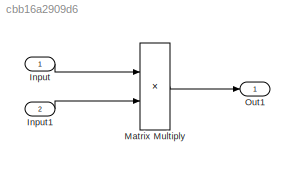
MODEL slx_cbb16a2909d6
KIND model
CONFIG AbsTol = auto
CONFIG EnableMultiTasking = off
CONFIG FixedStep = auto
CONFIG MaxStep = auto
CONFIG MinStep = auto
CONFIG RelTol = 1e-3
CONFIG SampleTimeConstraint = Unconstrained
CONFIG SolverName = FixedStepAuto
CONFIG StartTime = 0.0
CONFIG StopTime = 10.0
BLOCK [Inport] Input
  PortDimensions = [512 512]
BLOCK [Inport] Input1
  Port = 2
  PortDimensions = [512 512]
BLOCK [Product] Matrix Multiply
  Multiplication = Matrix(*)
BLOCK [Outport] Out1
LINE Input1:1 -> Matrix Multiply:2
LINE Input:1 -> Matrix Multiply:1
LINE Matrix Multiply:1 -> Out1:1
